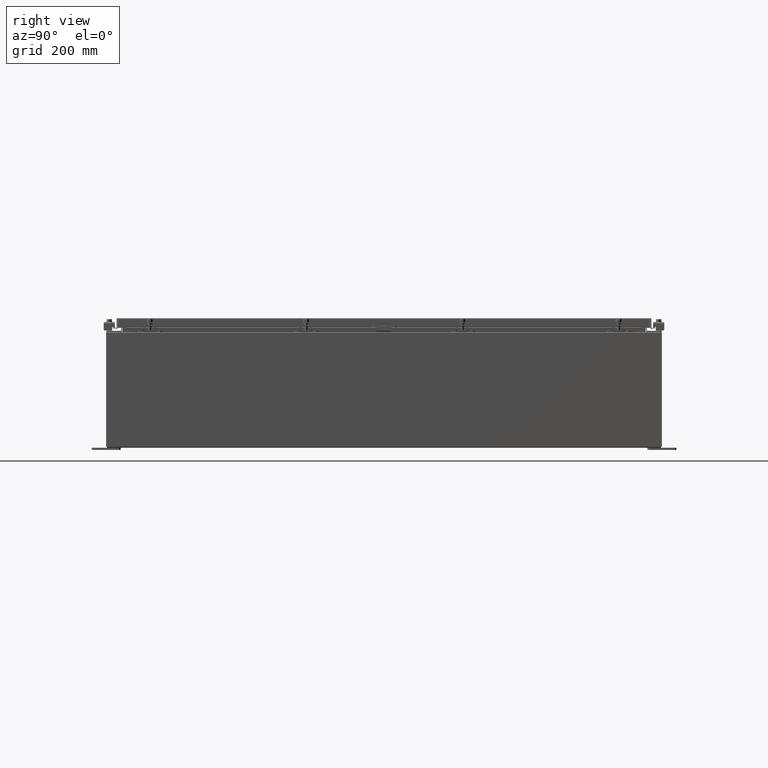
[diagram: clean part render]
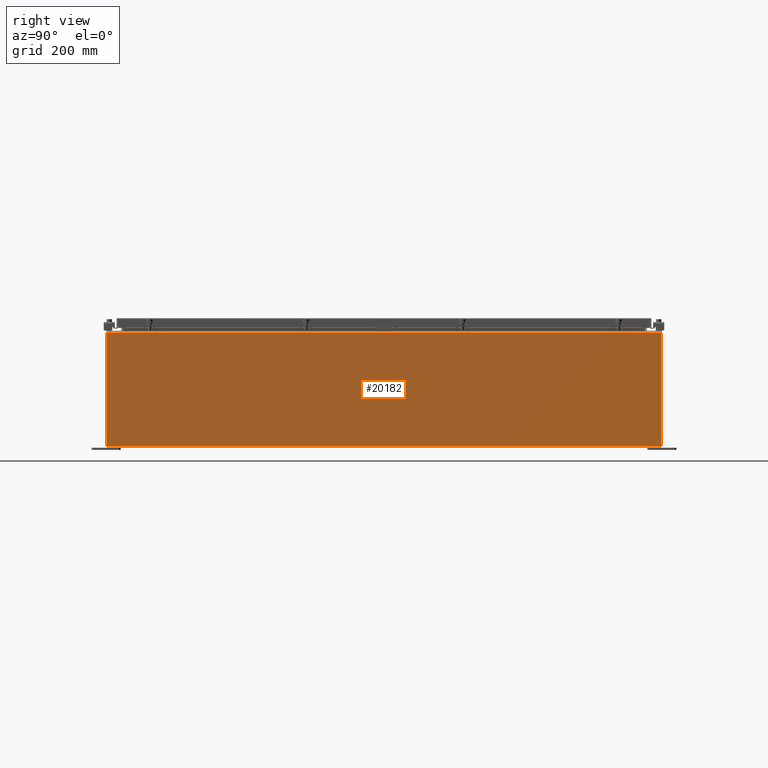
[diagram: same view with one face highlighted and labeled with its STEP entity id]
A machine part, right view. The second image highlights one B-rep face of the part: STEP entity #20182.
In plain terms, the highlighted planar face has unit normal (-1, 0, 0).
Its self-contained STEP definition (entity closure, byte-faithful):
#3862 = VECTOR ( 'NONE', #26793, 39.37007874015748100 ) ;
#5221 = LINE ( 'NONE', #21534, #14979 ) ;
#5434 = EDGE_LOOP ( 'NONE', ( #15150, #39444, #22375, #23666 ) ) ;
#5713 = EDGE_CURVE ( 'NONE', #16269, #42200, #5221, .T. ) ;
#6355 = EDGE_CURVE ( 'NONE', #34594, #37065, #35361, .T. ) ;
#6557 = AXIS2_PLACEMENT_3D ( 'NONE', #15063, #44089, #19295 ) ;
#7644 = CARTESIAN_POINT ( 'NONE',  ( 18.00000000000003200, -23.92529999999998900, 9.837600000000001900 ) ) ;
#8920 = FACE_OUTER_BOUND ( 'NONE', #5434, .T. ) ;
#10976 = CARTESIAN_POINT ( 'NONE',  ( 17.99999999999999600, -23.92529999999998900, 0.01299999999999984700 ) ) ;
#14979 = VECTOR ( 'NONE', #31738, 39.37007874015748100 ) ;
#15063 = CARTESIAN_POINT ( 'NONE',  ( 17.99999999999999600, 0.0000000000000000000, -6.367630515150754200E-014 ) ) ;
#15150 = ORIENTED_EDGE ( 'NONE', *, *, #5713, .T. ) ;
#16074 = DIRECTION ( 'NONE',  ( -1.609096119163526300E-031, -1.000000000000000000, -4.567295697298285000E-017 ) ) ;
#16269 = VERTEX_POINT ( 'NONE', #35818 ) ;
#17079 = CARTESIAN_POINT ( 'NONE',  ( 17.99999999999999600, -23.92529999999998900, 0.01299999999999897400 ) ) ;
#19295 = DIRECTION ( 'NONE',  ( 3.523082860860887800E-015, 0.0000000000000000000, 1.000000000000000000 ) ) ;
#19427 = DIRECTION ( 'NONE',  ( 3.523082860860888200E-015, 0.0000000000000000000, 1.000000000000000000 ) ) ;
#20182 = ADVANCED_FACE ( 'NONE', ( #8920 ), #39959, .F. ) ;
#20274 = CARTESIAN_POINT ( 'NONE',  ( 17.99999999999999600, 23.92529999999998600, 0.01300000000000203200 ) ) ;
#21534 = CARTESIAN_POINT ( 'NONE',  ( 18.00000000000003200, 23.92529999999998900, 9.837599999999994800 ) ) ;
#22375 = ORIENTED_EDGE ( 'NONE', *, *, #6355, .F. ) ;
#23666 = ORIENTED_EDGE ( 'NONE', *, *, #46446, .T. ) ;
#26030 = LINE ( 'NONE', #39321, #3862 ) ;
#26793 = DIRECTION ( 'NONE',  ( -3.523082860860888200E-015, 0.0000000000000000000, -1.000000000000000000 ) ) ;
#31738 = DIRECTION ( 'NONE',  ( -0.0000000000000000000, -1.000000000000000000, -0.0000000000000000000 ) ) ;
#32412 = EDGE_CURVE ( 'NONE', #42200, #37065, #26030, .T. ) ;
#32757 = VECTOR ( 'NONE', #16074, 39.37007874015748100 ) ;
#34594 = VERTEX_POINT ( 'NONE', #20274 ) ;
#35361 = LINE ( 'NONE', #10976, #32757 ) ;
#35818 = CARTESIAN_POINT ( 'NONE',  ( 18.00000000000003200, 23.92529999999998600, 9.837599999999994800 ) ) ;
#36531 = LINE ( 'NONE', #44213, #37841 ) ;
#37065 = VERTEX_POINT ( 'NONE', #17079 ) ;
#37841 = VECTOR ( 'NONE', #19427, 39.37007874015748100 ) ;
#39321 = CARTESIAN_POINT ( 'NONE',  ( 17.99999999999999600, -23.92529999999998900, -6.367630515150754200E-014 ) ) ;
#39444 = ORIENTED_EDGE ( 'NONE', *, *, #32412, .T. ) ;
#39959 = PLANE ( 'NONE',  #6557 ) ;
#42200 = VERTEX_POINT ( 'NONE', #7644 ) ;
#44089 = DIRECTION ( 'NONE',  ( -1.000000000000000000, 0.0000000000000000000, 3.523082860860887800E-015 ) ) ;
#44213 = CARTESIAN_POINT ( 'NONE',  ( 17.99999999999999600, 23.92529999999998900, -6.367630515150754200E-014 ) ) ;
#46446 = EDGE_CURVE ( 'NONE', #34594, #16269, #36531, .T. ) ;